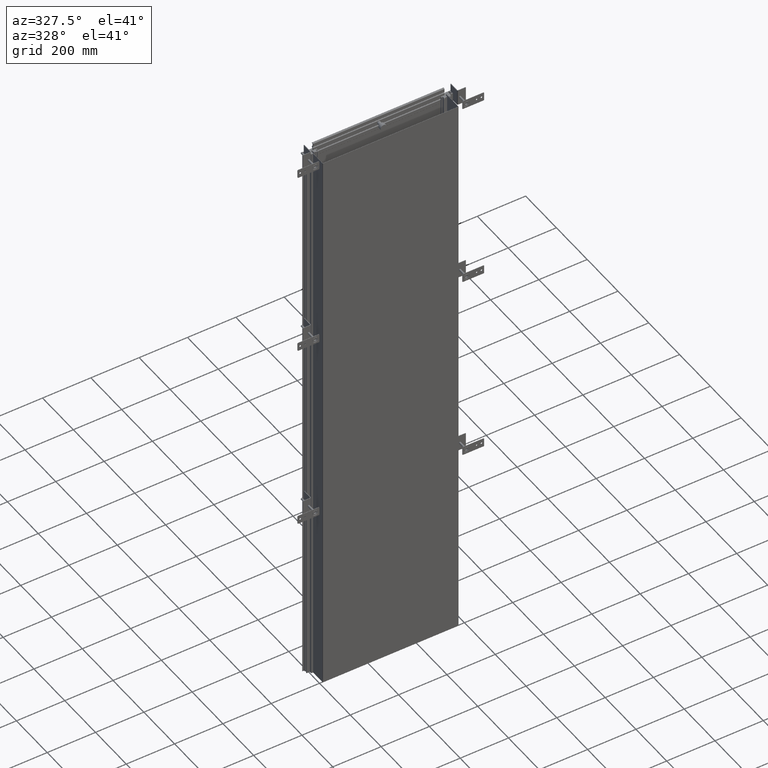
[diagram: clean part render]
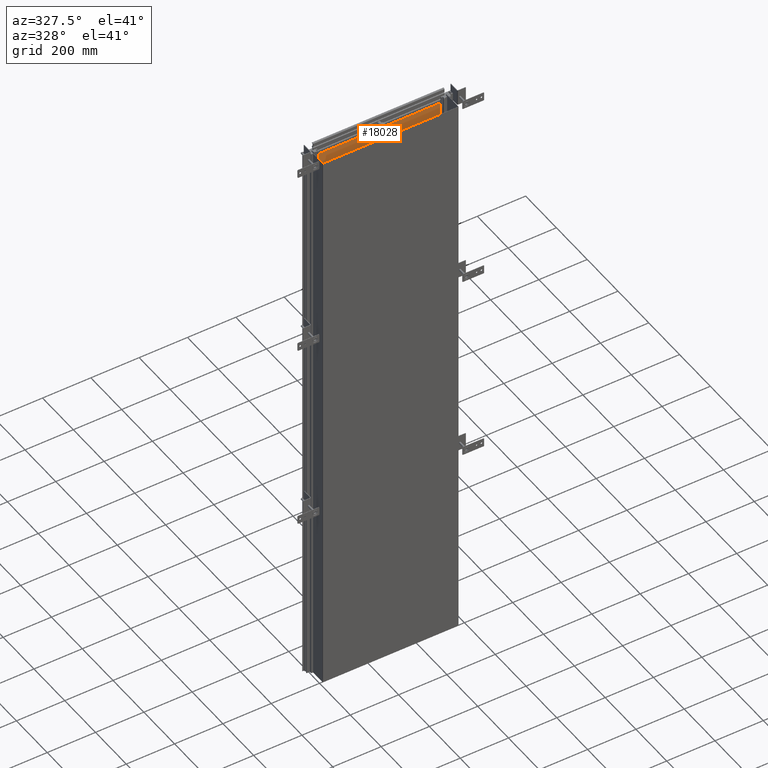
[diagram: same view with one face highlighted and labeled with its STEP entity id]
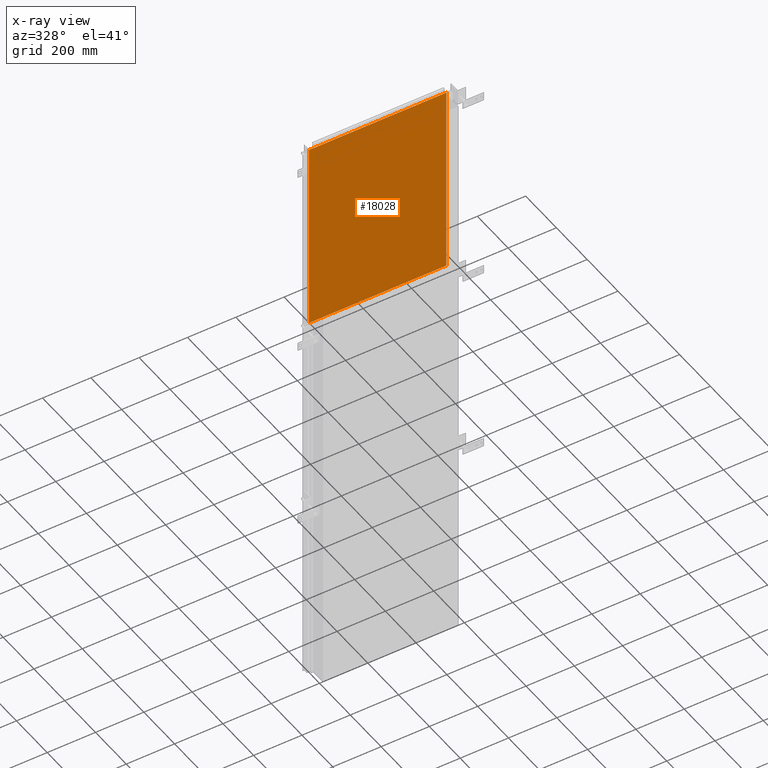
[diagram: x-ray of the same camera — body ghosted, the highlighted face saturated]
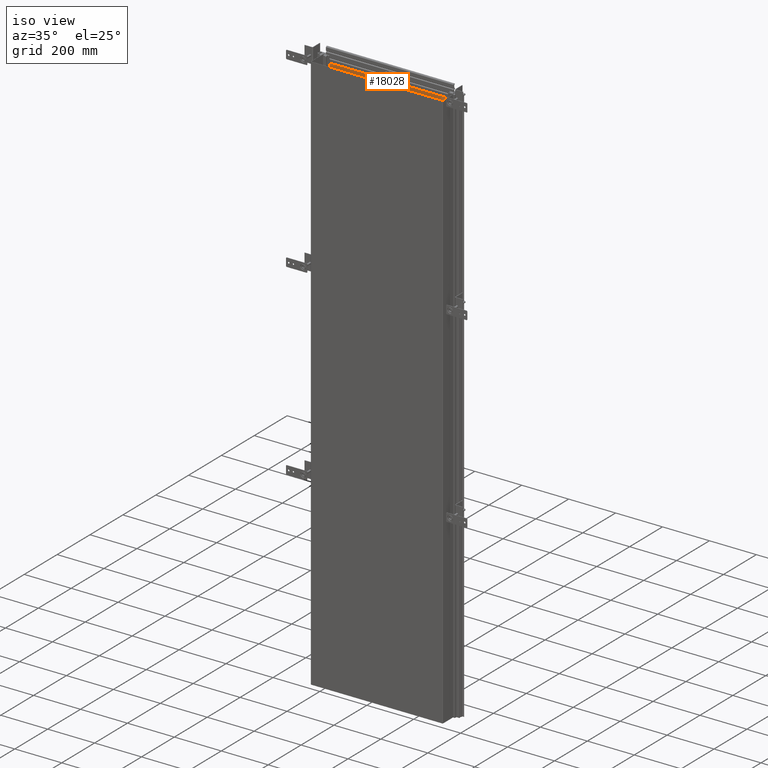
[diagram: same view with one face highlighted and labeled with its STEP entity id]
A machine part, auxiliary view. The second image highlights one B-rep face of the part: STEP entity #18028.
The next image is the same camera in x-ray: the body ghosted, the highlighted face saturated — about 0% of this face is hidden behind the body in this view.
A second angle (iso view) of the same face is appended — the face is thin or edge-on in the first view.
In plain terms, the highlighted planar face has unit normal (0, 1, 0).
Its self-contained STEP definition (entity closure, byte-faithful):
#17949=DIRECTION('',(1.E0,0.E0,0.E0));
#17950=VECTOR('',#17949,5.695E2);
#17951=CARTESIAN_POINT('',(-2.8475E2,0.E0,4.E2));
#17952=LINE('',#17951,#17950);
#17953=DIRECTION('',(0.E0,0.E0,-1.E0));
#17954=VECTOR('',#17953,8.E2);
#17955=CARTESIAN_POINT('',(2.8475E2,0.E0,4.E2));
#17956=LINE('',#17955,#17954);
#17957=DIRECTION('',(-1.E0,0.E0,0.E0));
#17958=VECTOR('',#17957,5.695E2);
#17959=CARTESIAN_POINT('',(2.8475E2,0.E0,-4.E2));
#17960=LINE('',#17959,#17958);
#17961=DIRECTION('',(0.E0,0.E0,1.E0));
#17962=VECTOR('',#17961,8.E2);
#17963=CARTESIAN_POINT('',(-2.8475E2,0.E0,-4.E2));
#17964=LINE('',#17963,#17962);
#17997=CARTESIAN_POINT('',(-2.8475E2,0.E0,4.E2));
#17998=CARTESIAN_POINT('',(2.8475E2,0.E0,4.E2));
#17999=VERTEX_POINT('',#17997);
#18000=VERTEX_POINT('',#17998);
#18001=CARTESIAN_POINT('',(2.8475E2,0.E0,-4.E2));
#18002=VERTEX_POINT('',#18001);
#18003=CARTESIAN_POINT('',(-2.8475E2,0.E0,-4.E2));
#18004=VERTEX_POINT('',#18003);
#18013=CARTESIAN_POINT('',(0.E0,0.E0,0.E0));
#18014=DIRECTION('',(0.E0,1.E0,0.E0));
#18015=DIRECTION('',(1.E0,0.E0,0.E0));
#18016=AXIS2_PLACEMENT_3D('',#18013,#18014,#18015);
#18017=PLANE('',#18016);
#18019=ORIENTED_EDGE('',*,*,#18018,.T.);
#18021=ORIENTED_EDGE('',*,*,#18020,.T.);
#18023=ORIENTED_EDGE('',*,*,#18022,.T.);
#18025=ORIENTED_EDGE('',*,*,#18024,.T.);
#18026=EDGE_LOOP('',(#18019,#18021,#18023,#18025));
#18027=FACE_OUTER_BOUND('',#18026,.F.);
#18018=EDGE_CURVE('',#17999,#18000,#17952,.T.);
#18020=EDGE_CURVE('',#18000,#18002,#17956,.T.);
#18022=EDGE_CURVE('',#18002,#18004,#17960,.T.);
#18024=EDGE_CURVE('',#18004,#17999,#17964,.T.);
#18028=ADVANCED_FACE('',(#18027),#18017,.F.);